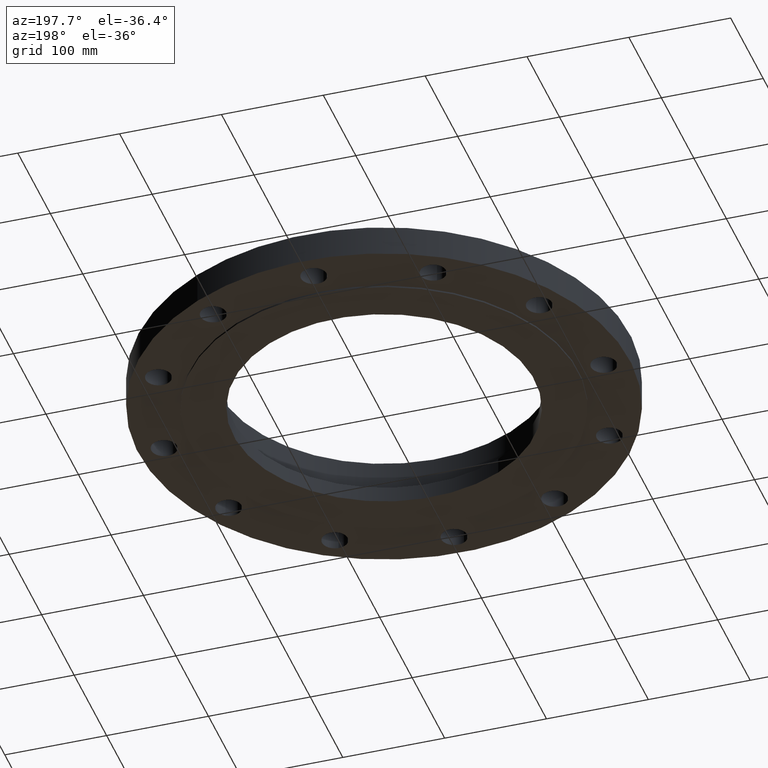
[diagram: clean part render]
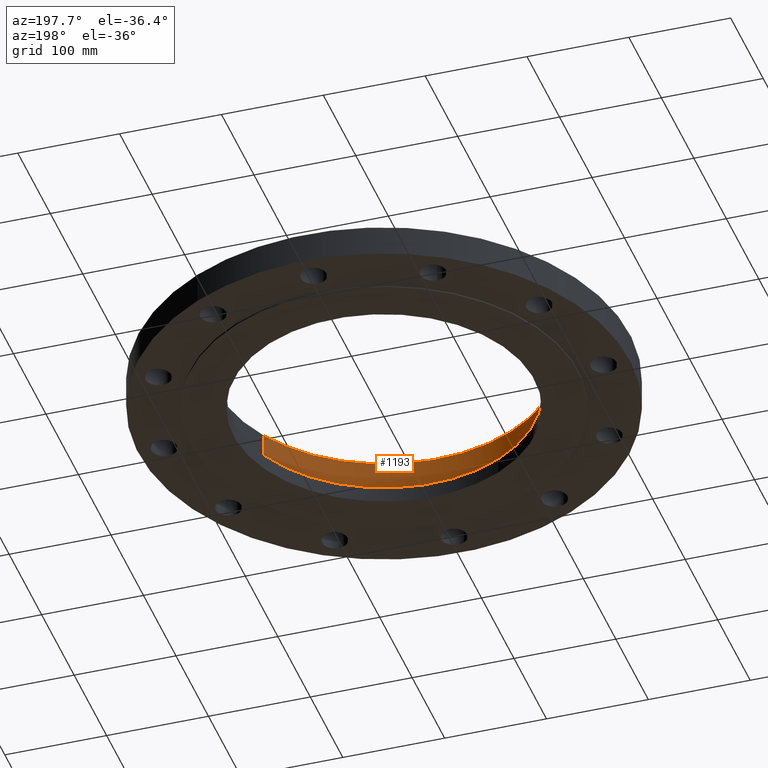
[diagram: same view with one face highlighted and labeled with its STEP entity id]
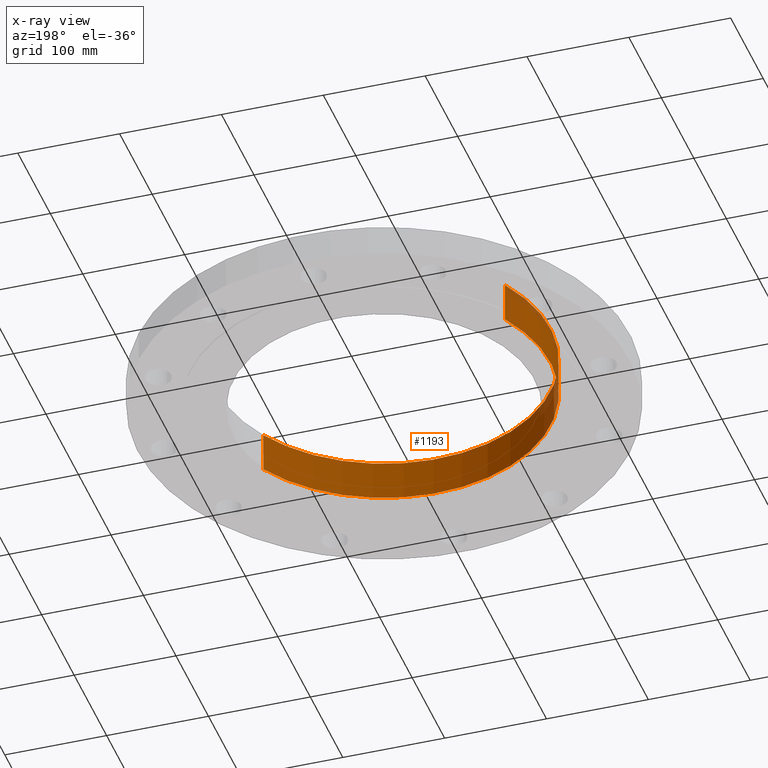
[diagram: x-ray of the same camera — body ghosted, the highlighted face saturated]
A machine part, auxiliary view. The second image highlights one B-rep face of the part: STEP entity #1193.
The next image is the same camera in x-ray: the body ghosted, the highlighted face saturated — about 5% of this face is hidden behind the body in this view.
In plain terms, the highlighted cylindrical surface (partial cylindrical patch) has radius 163.576 mm, axis along (0, 0, -1).
Its self-contained STEP definition (entity closure, byte-faithful):
#51=AXIS2_PLACEMENT_3D('Circle Axis2P3D',#49,#50,$) ;
#641=AXIS2_PLACEMENT_3D('Circle Axis2P3D',#639,#640,$) ;
#1168=AXIS2_PLACEMENT_3D('Cylinder Axis2P3D',#1165,#1166,#1167) ;
#44=CARTESIAN_POINT('Vertex',(-5.6516316986,3.08750046862,0.560000000002)) ;
#46=CARTESIAN_POINT('Vertex',(5.6516316986,-3.08750046862,0.560000000002)) ;
#49=CARTESIAN_POINT('Axis2P3D Location',(1.39870617276E-016,1.04902962957E-016,0.560000000002)) ;
#634=CARTESIAN_POINT('Vertex',(-5.6516316986,3.08750046862,2.12000000001)) ;
#636=CARTESIAN_POINT('Vertex',(5.6516316986,-3.08750046862,2.12000000001)) ;
#639=CARTESIAN_POINT('Axis2P3D Location',(2.79741234551E-016,1.1189649382E-015,2.12000000001)) ;
#1165=CARTESIAN_POINT('Axis2P3D Location',(1.39870617276E-016,1.04902962957E-016,2.11606299213)) ;
#1170=CARTESIAN_POINT('Line Origine',(-5.6516316986,3.08750046862,1.34000000001)) ;
#1175=CARTESIAN_POINT('Line Origine',(5.6516316986,-3.08750046862,1.34000000001)) ;
#50=DIRECTION('Axis2P3D Direction',(0.,0.,-0.0393700787402)) ;
#640=DIRECTION('Axis2P3D Direction',(0.,0.,-0.0393700787402)) ;
#1166=DIRECTION('Axis2P3D Direction',(0.,0.,-0.0393700787402)) ;
#1167=DIRECTION('Axis2P3D XDirection',(0.0345504945626,-0.0188750212049,0.)) ;
#1171=DIRECTION('Vector Direction',(0.,0.,-0.0393700787402)) ;
#1176=DIRECTION('Vector Direction',(0.,0.,-0.0393700787402)) ;
#1172=VECTOR('Line Direction',#1171,0.0393700787402) ;
#1177=VECTOR('Line Direction',#1176,0.0393700787402) ;
#1188=ORIENTED_EDGE('',*,*,#643,.F.) ;
#1189=ORIENTED_EDGE('',*,*,#1179,.F.) ;
#1190=ORIENTED_EDGE('',*,*,#53,.T.) ;
#1191=ORIENTED_EDGE('',*,*,#1174,.T.) ;
#1193=ADVANCED_FACE('PartBody',(#1192),#1169,.F.) ;
#52=CIRCLE('generated circle',#51,6.44000000003) ;
#642=CIRCLE('generated circle',#641,6.44000000003) ;
#1169=CYLINDRICAL_SURFACE('generated cylinder',#1168,6.44000000003) ;
#53=EDGE_CURVE('',#47,#45,#52,.T.) ;
#643=EDGE_CURVE('',#637,#635,#642,.T.) ;
#1174=EDGE_CURVE('',#45,#635,#1173,.F.) ;
#1179=EDGE_CURVE('',#47,#637,#1178,.F.) ;
#1187=EDGE_LOOP('',(#1188,#1189,#1190,#1191)) ;
#1192=FACE_OUTER_BOUND('',#1187,.T.) ;
#1173=LINE('Line',#1170,#1172) ;
#1178=LINE('Line',#1175,#1177) ;
#45=VERTEX_POINT('',#44) ;
#47=VERTEX_POINT('',#46) ;
#635=VERTEX_POINT('',#634) ;
#637=VERTEX_POINT('',#636) ;